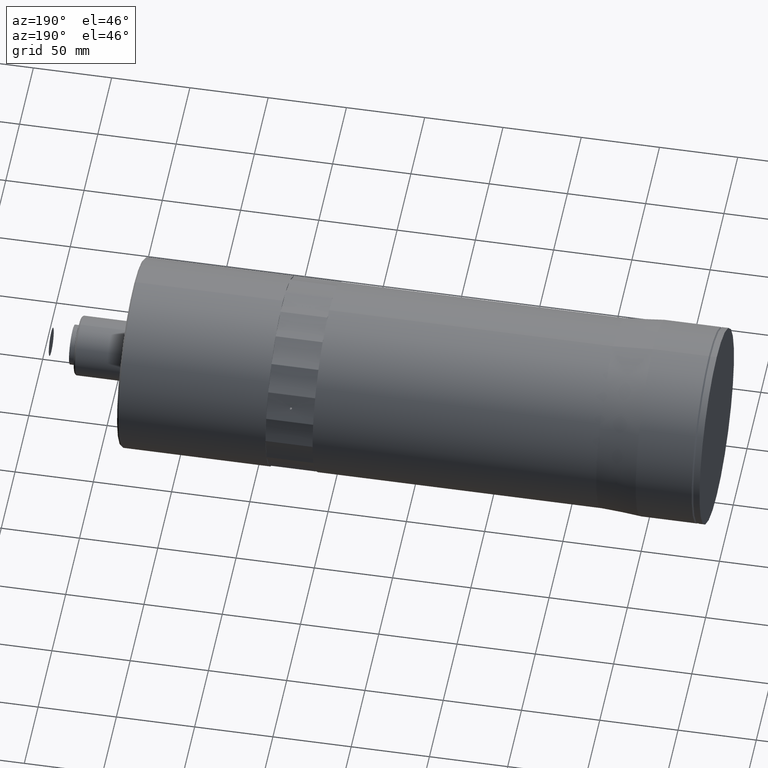
[diagram: clean part render]
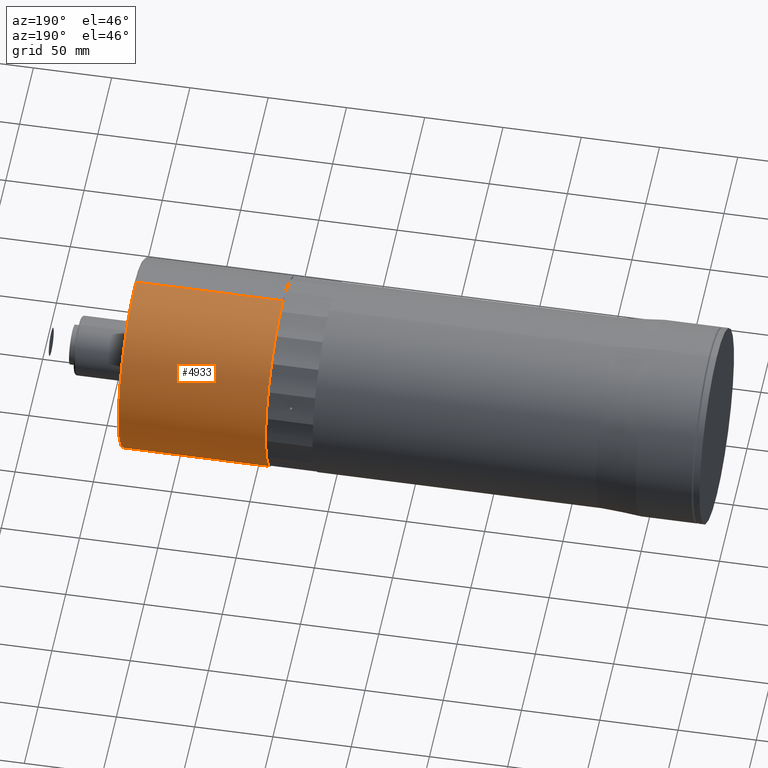
[diagram: same view with one face highlighted and labeled with its STEP entity id]
A machine part, auxiliary view. The second image highlights one B-rep face of the part: STEP entity #4933.
In plain terms, the highlighted cylindrical surface (partial cylindrical patch) has radius 60.5 mm, axis along (-1, 0, -0).
Its self-contained STEP definition (entity closure, byte-faithful):
#61 = EDGE_CURVE ( 'NONE', #22990, #5990, #7832, .T. ) ;
#310 = FACE_OUTER_BOUND ( 'NONE', #19905, .T. ) ;
#1297 = DIRECTION ( 'NONE',  ( 0.0000000000000000000, 0.0000000000000000000, 1.000000000000000000 ) ) ;
#3089 = LINE ( 'NONE', #21391, #13199 ) ;
#3175 = DIRECTION ( 'NONE',  ( -1.000000000000000000, -0.0000000000000000000, -0.0000000000000000000 ) ) ;
#3369 = CARTESIAN_POINT ( 'NONE',  ( -67.38060754694561200, 0.0000000000000000000, 60.49999999999999300 ) ) ;
#4023 = ORIENTED_EDGE ( 'NONE', *, *, #21670, .T. ) ;
#4446 = AXIS2_PLACEMENT_3D ( 'NONE', #19908, #12405, #21467 ) ;
#4513 = CYLINDRICAL_SURFACE ( 'NONE', #11814, 60.49999999999999300 ) ;
#4933 = ADVANCED_FACE ( 'NONE', ( #310 ), #4513, .T. ) ;
#5250 = VERTEX_POINT ( 'NONE', #22075 ) ;
#5605 = VECTOR ( 'NONE', #3175, 1000.000000000000000 ) ;
#5990 = VERTEX_POINT ( 'NONE', #14687 ) ;
#7119 = EDGE_CURVE ( 'NONE', #22990, #18989, #16967, .T. ) ;
#7813 = CIRCLE ( 'NONE', #4446, 60.49999999999998600 ) ;
#7832 = LINE ( 'NONE', #19459, #5605 ) ;
#8947 = DIRECTION ( 'NONE',  ( -1.000000000000000000, -0.0000000000000000000, -0.0000000000000000000 ) ) ;
#10254 = CARTESIAN_POINT ( 'NONE',  ( -67.38060754694561200, 0.0000000000000000000, 0.0000000000000000000 ) ) ;
#10399 = DIRECTION ( 'NONE',  ( 0.0000000000000000000, 0.0000000000000000000, 1.000000000000000000 ) ) ;
#10803 = AXIS2_PLACEMENT_3D ( 'NONE', #10254, #22874, #1297 ) ;
#11814 = AXIS2_PLACEMENT_3D ( 'NONE', #15799, #19466, #10399 ) ;
#12405 = DIRECTION ( 'NONE',  ( -1.000000000000000000, -0.0000000000000000000, -0.0000000000000000000 ) ) ;
#13199 = VECTOR ( 'NONE', #8947, 1000.000000000000000 ) ;
#14687 = CARTESIAN_POINT ( 'NONE',  ( -161.3806075469456100, 0.0000000000000000000, 60.49999999999998600 ) ) ;
#15799 = CARTESIAN_POINT ( 'NONE',  ( -199.5467962280122000, 0.0000000000000000000, 0.0000000000000000000 ) ) ;
#15833 = ORIENTED_EDGE ( 'NONE', *, *, #17067, .F. ) ;
#16967 = CIRCLE ( 'NONE', #10803, 60.49999999999999300 ) ;
#17067 = EDGE_CURVE ( 'NONE', #5990, #5250, #7813, .T. ) ;
#18226 = ORIENTED_EDGE ( 'NONE', *, *, #7119, .T. ) ;
#18989 = VERTEX_POINT ( 'NONE', #19345 ) ;
#19345 = CARTESIAN_POINT ( 'NONE',  ( -67.38060754694561200, 7.409113134841485900E-015, -60.49999999999999300 ) ) ;
#19459 = CARTESIAN_POINT ( 'NONE',  ( -199.5467962280122000, 0.0000000000000000000, 60.49999999999999300 ) ) ;
#19466 = DIRECTION ( 'NONE',  ( -1.000000000000000000, -0.0000000000000000000, -0.0000000000000000000 ) ) ;
#19905 = EDGE_LOOP ( 'NONE', ( #18226, #4023, #15833, #21050 ) ) ;
#19908 = CARTESIAN_POINT ( 'NONE',  ( -161.3806075469456100, 0.0000000000000000000, 0.0000000000000000000 ) ) ;
#21050 = ORIENTED_EDGE ( 'NONE', *, *, #61, .F. ) ;
#21391 = CARTESIAN_POINT ( 'NONE',  ( -199.5467962280122000, 7.409113134841485900E-015, -60.49999999999999300 ) ) ;
#21467 = DIRECTION ( 'NONE',  ( 0.0000000000000000000, 0.0000000000000000000, 1.000000000000000000 ) ) ;
#21670 = EDGE_CURVE ( 'NONE', #18989, #5250, #3089, .T. ) ;
#22075 = CARTESIAN_POINT ( 'NONE',  ( -161.3806075469456100, 7.409113134841485900E-015, -60.49999999999998600 ) ) ;
#22874 = DIRECTION ( 'NONE',  ( -1.000000000000000000, -0.0000000000000000000, -0.0000000000000000000 ) ) ;
#22990 = VERTEX_POINT ( 'NONE', #3369 ) ;